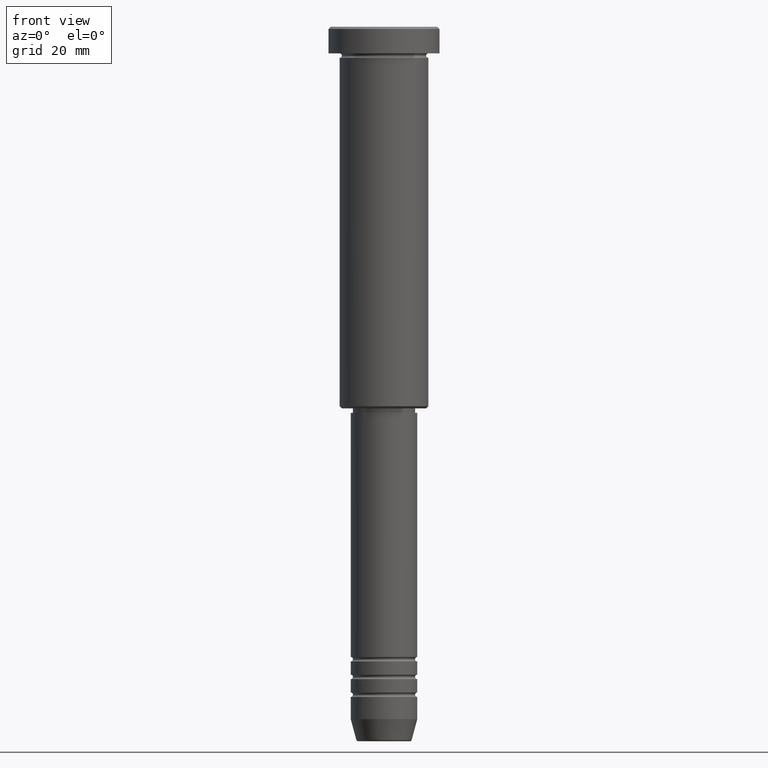
[diagram: clean part render]
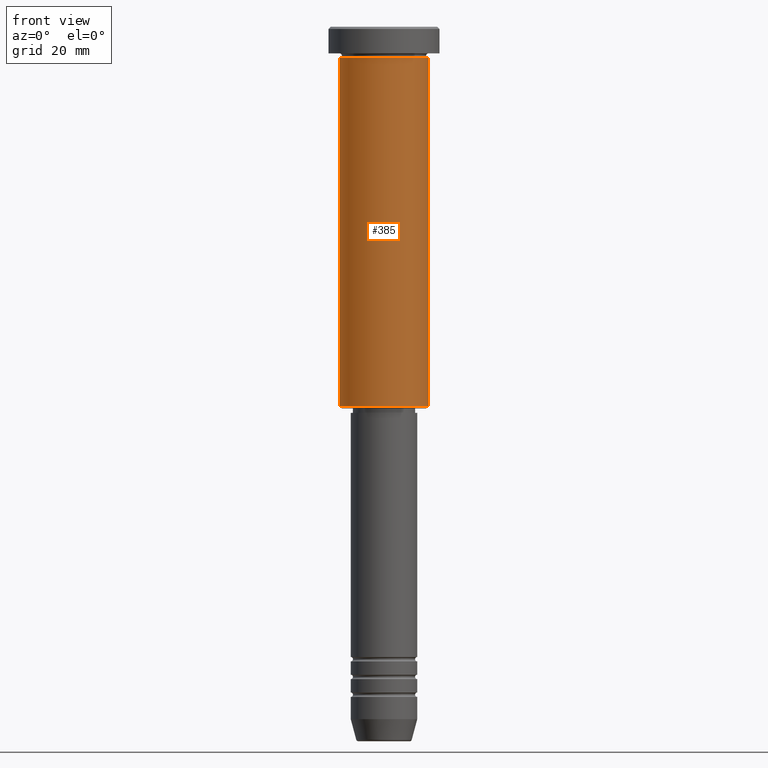
[diagram: same view with one face highlighted and labeled with its STEP entity id]
A machine part, front view. The second image highlights one B-rep face of the part: STEP entity #385.
In plain terms, the highlighted cylindrical surface (partial cylindrical patch) has radius 10 mm, axis along (-0, -0, 1).
Its self-contained STEP definition (entity closure, byte-faithful):
#1 = LINE ( 'NONE', #369, #723 ) ;
#24 = CARTESIAN_POINT ( 'NONE',  ( -10.00000000000000000, 1.224646799147353256E-15, -85.49999999999995737 ) ) ;
#120 = LINE ( 'NONE', #483, #783 ) ;
#146 = CARTESIAN_POINT ( 'NONE',  ( 10.00000000000000000, 0.000000000000000000, -6.999999999999996447 ) ) ;
#188 = ORIENTED_EDGE ( 'NONE', *, *, #946, .F. ) ;
#232 = CARTESIAN_POINT ( 'NONE',  ( 10.00000000000000000, 0.000000000000000000, -85.49999999999995737 ) ) ;
#238 = AXIS2_PLACEMENT_3D ( 'NONE', #381, #883, #1163 ) ;
#246 = EDGE_CURVE ( 'NONE', #738, #1024, #1, .T. ) ;
#251 = EDGE_CURVE ( 'NONE', #615, #738, #252, .T. ) ;
#252 = CIRCLE ( 'NONE', #782, 10.00000000000000000 ) ;
#342 = EDGE_CURVE ( 'NONE', #615, #432, #120, .T. ) ;
#369 = CARTESIAN_POINT ( 'NONE',  ( 10.00000000000000000, 0.000000000000000000, 0.000000000000000000 ) ) ;
#381 = CARTESIAN_POINT ( 'NONE',  ( 0.000000000000000000, 0.000000000000000000, 0.000000000000000000 ) ) ;
#385 = ADVANCED_FACE ( 'NONE', ( #628 ), #989, .T. ) ;
#432 = VERTEX_POINT ( 'NONE', #736 ) ;
#483 = CARTESIAN_POINT ( 'NONE',  ( -10.00000000000000000, 1.224646799147353256E-15, 0.000000000000000000 ) ) ;
#500 = DIRECTION ( 'NONE',  ( 1.000000000000000000, 0.000000000000000000, 0.000000000000000000 ) ) ;
#600 = DIRECTION ( 'NONE',  ( -1.000000000000000000, 0.000000000000000000, 0.000000000000000000 ) ) ;
#615 = VERTEX_POINT ( 'NONE', #24 ) ;
#628 = FACE_OUTER_BOUND ( 'NONE', #961, .T. ) ;
#723 = VECTOR ( 'NONE', #1088, 1000.000000000000000 ) ;
#731 = CARTESIAN_POINT ( 'NONE',  ( 0.000000000000000000, 0.000000000000000000, -85.49999999999995737 ) ) ;
#736 = CARTESIAN_POINT ( 'NONE',  ( -10.00000000000000000, 1.224646799147353256E-15, -6.999999999999996447 ) ) ;
#738 = VERTEX_POINT ( 'NONE', #232 ) ;
#749 = CIRCLE ( 'NONE', #1018, 10.00000000000000000 ) ;
#776 = DIRECTION ( 'NONE',  ( -0.000000000000000000, -0.000000000000000000, 1.000000000000000000 ) ) ;
#782 = AXIS2_PLACEMENT_3D ( 'NONE', #731, #1097, #600 ) ;
#783 = VECTOR ( 'NONE', #841, 1000.000000000000000 ) ;
#841 = DIRECTION ( 'NONE',  ( -0.000000000000000000, -0.000000000000000000, 1.000000000000000000 ) ) ;
#871 = ORIENTED_EDGE ( 'NONE', *, *, #246, .T. ) ;
#883 = DIRECTION ( 'NONE',  ( -0.000000000000000000, -0.000000000000000000, 1.000000000000000000 ) ) ;
#946 = EDGE_CURVE ( 'NONE', #432, #1024, #749, .T. ) ;
#961 = EDGE_LOOP ( 'NONE', ( #1129, #1073, #871, #188 ) ) ;
#989 = CYLINDRICAL_SURFACE ( 'NONE', #238, 10.00000000000000000 ) ;
#1018 = AXIS2_PLACEMENT_3D ( 'NONE', #1029, #776, #500 ) ;
#1024 = VERTEX_POINT ( 'NONE', #146 ) ;
#1029 = CARTESIAN_POINT ( 'NONE',  ( 0.000000000000000000, 0.000000000000000000, -6.999999999999996447 ) ) ;
#1073 = ORIENTED_EDGE ( 'NONE', *, *, #251, .T. ) ;
#1088 = DIRECTION ( 'NONE',  ( -0.000000000000000000, -0.000000000000000000, 1.000000000000000000 ) ) ;
#1097 = DIRECTION ( 'NONE',  ( -0.000000000000000000, -0.000000000000000000, 1.000000000000000000 ) ) ;
#1129 = ORIENTED_EDGE ( 'NONE', *, *, #342, .F. ) ;
#1163 = DIRECTION ( 'NONE',  ( 1.000000000000000000, 0.000000000000000000, 0.000000000000000000 ) ) ;